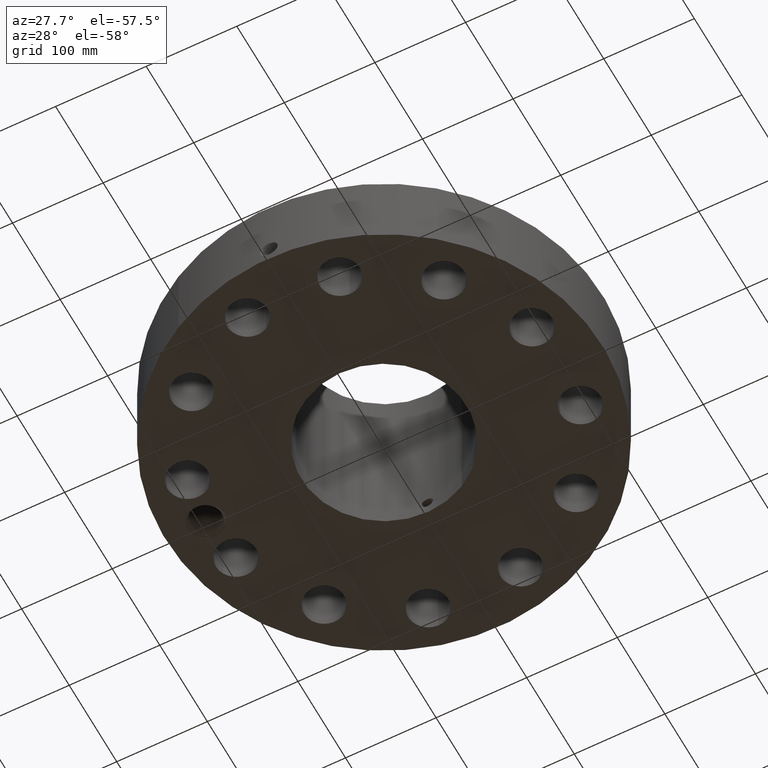
[diagram: clean part render]
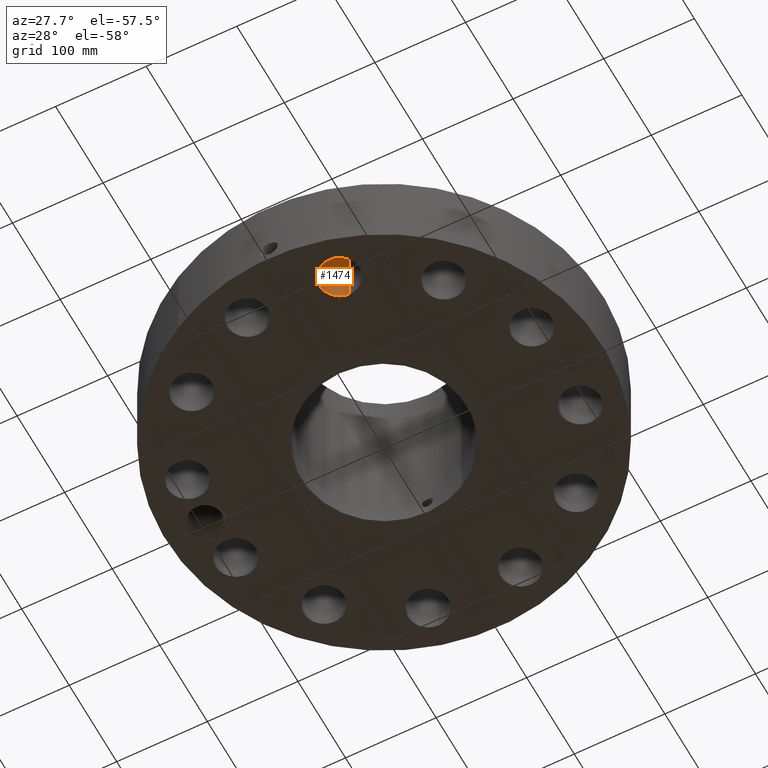
[diagram: same view with one face highlighted and labeled with its STEP entity id]
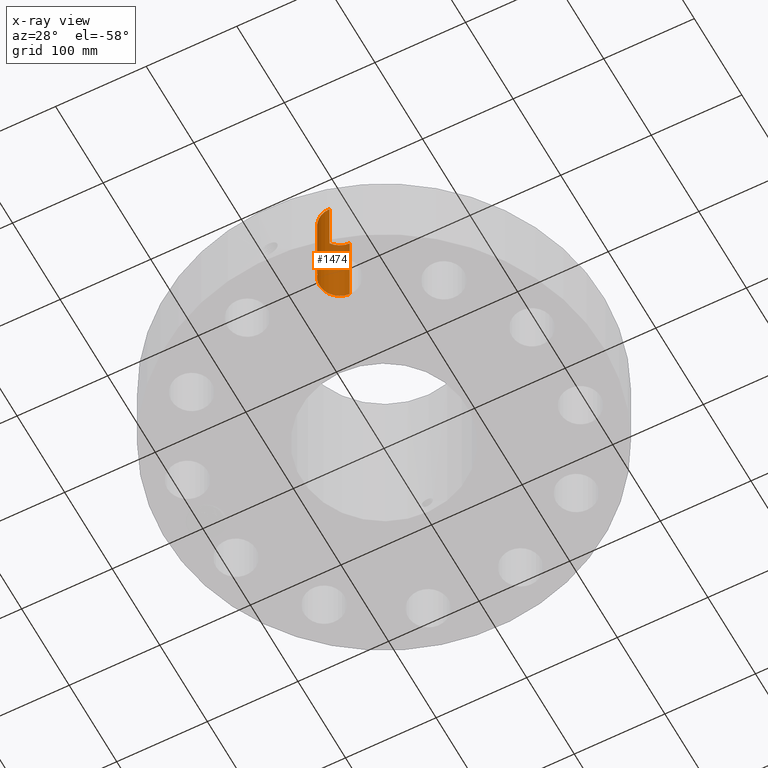
[diagram: x-ray of the same camera — body ghosted, the highlighted face saturated]
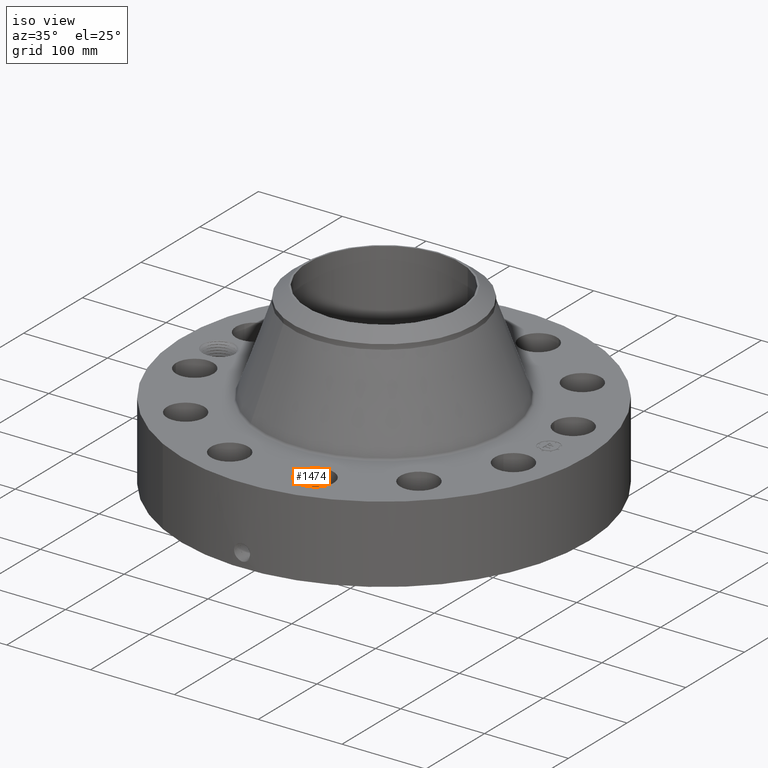
[diagram: same view with one face highlighted and labeled with its STEP entity id]
A machine part, auxiliary view. The second image highlights one B-rep face of the part: STEP entity #1474.
The next image is the same camera in x-ray: the body ghosted, the highlighted face saturated — about 13% of this face is hidden behind the body in this view.
A second angle (iso view) of the same face is appended — the face is thin or edge-on in the first view.
In plain terms, the highlighted cylindrical surface (edge-blend (fillet) strip) has radius 22.225 mm, axis along (0, -0, -1).
Its self-contained STEP definition (entity closure, byte-faithful):
#307=AXIS2_PLACEMENT_3D('Circle Axis2P3D',#305,#306,$) ;
#699=AXIS2_PLACEMENT_3D('Circle Axis2P3D',#697,#698,$) ;
#1449=AXIS2_PLACEMENT_3D('Cylinder Axis2P3D',#1446,#1447,#1448) ;
#300=CARTESIAN_POINT('Vertex',(1.98520058742,-6.61116878718,0.250000000001)) ;
#302=CARTESIAN_POINT('Vertex',(2.02649461168,-8.36068152036,0.250000000001)) ;
#305=CARTESIAN_POINT('Axis2P3D Location',(2.00584759955,-7.48592515377,0.250000000001)) ;
#697=CARTESIAN_POINT('Axis2P3D Location',(2.00584759955,-7.48592515377,3.87000000002)) ;
#701=CARTESIAN_POINT('Vertex',(2.02649461168,-8.36068152036,3.87000000002)) ;
#703=CARTESIAN_POINT('Vertex',(1.98520058742,-6.61116878718,3.87000000002)) ;
#1446=CARTESIAN_POINT('Axis2P3D Location',(2.00584759955,-7.48592515377,3.86606299214)) ;
#1451=CARTESIAN_POINT('Line Origine',(1.98520058742,-6.61116878718,2.06000000001)) ;
#1456=CARTESIAN_POINT('Line Origine',(2.02649461168,-8.36068152036,2.06000000001)) ;
#306=DIRECTION('Axis2P3D Direction',(0.,0.,-0.0393700787402)) ;
#698=DIRECTION('Axis2P3D Direction',(0.,0.,-0.0393700787402)) ;
#1447=DIRECTION('Axis2P3D Direction',(0.,-0.,-0.0393700787402)) ;
#1448=DIRECTION('Axis2P3D XDirection',(0.000928999420902,-0.039359116607,0.)) ;
#1452=DIRECTION('Vector Direction',(0.,0.,-0.0393700787402)) ;
#1457=DIRECTION('Vector Direction',(0.,0.,-0.0393700787402)) ;
#1453=VECTOR('Line Direction',#1452,0.0393700787402) ;
#1458=VECTOR('Line Direction',#1457,0.0393700787402) ;
#1469=ORIENTED_EDGE('',*,*,#1460,.F.) ;
#1470=ORIENTED_EDGE('',*,*,#309,.T.) ;
#1471=ORIENTED_EDGE('',*,*,#1455,.T.) ;
#1472=ORIENTED_EDGE('',*,*,#705,.F.) ;
#1474=ADVANCED_FACE('PartBody',(#1473),#1450,.F.) ;
#308=CIRCLE('generated circle',#307,0.875000000003) ;
#700=CIRCLE('generated circle',#699,0.875000000003) ;
#1450=CYLINDRICAL_SURFACE('generated cylinder',#1449,0.875000000003) ;
#309=EDGE_CURVE('',#303,#301,#308,.T.) ;
#705=EDGE_CURVE('',#702,#704,#700,.T.) ;
#1455=EDGE_CURVE('',#301,#704,#1454,.F.) ;
#1460=EDGE_CURVE('',#303,#702,#1459,.F.) ;
#1468=EDGE_LOOP('',(#1469,#1470,#1471,#1472)) ;
#1473=FACE_OUTER_BOUND('',#1468,.T.) ;
#1454=LINE('Line',#1451,#1453) ;
#1459=LINE('Line',#1456,#1458) ;
#301=VERTEX_POINT('',#300) ;
#303=VERTEX_POINT('',#302) ;
#702=VERTEX_POINT('',#701) ;
#704=VERTEX_POINT('',#703) ;